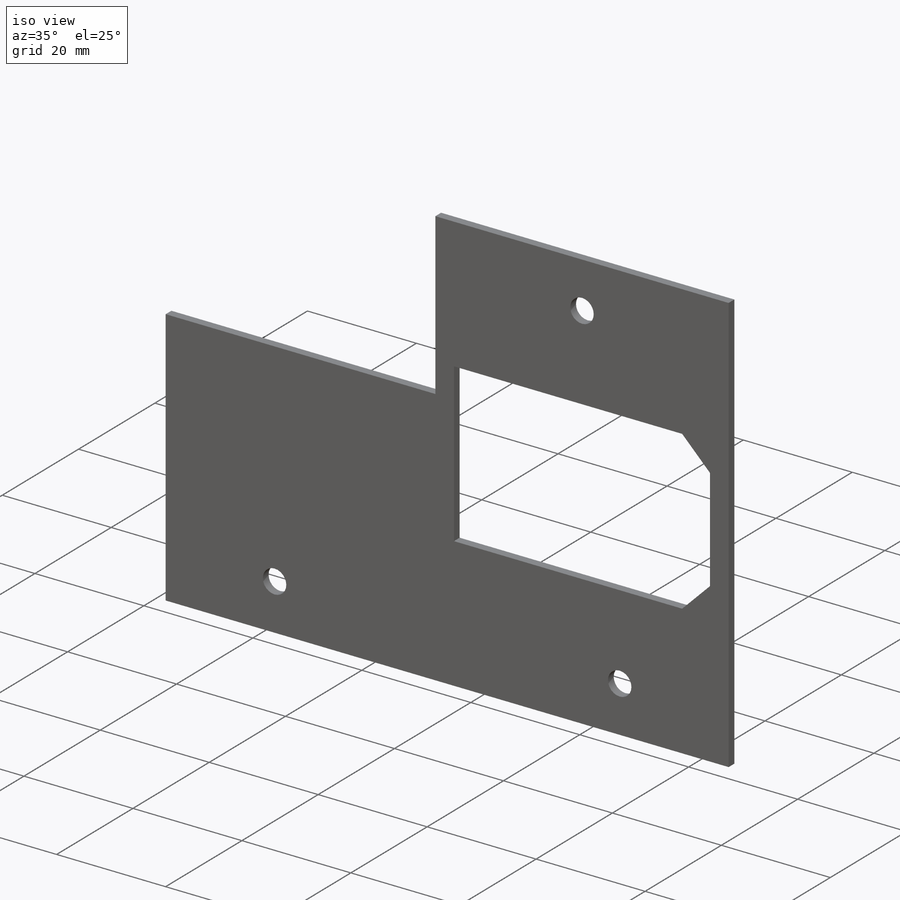
[diagram: iso view]
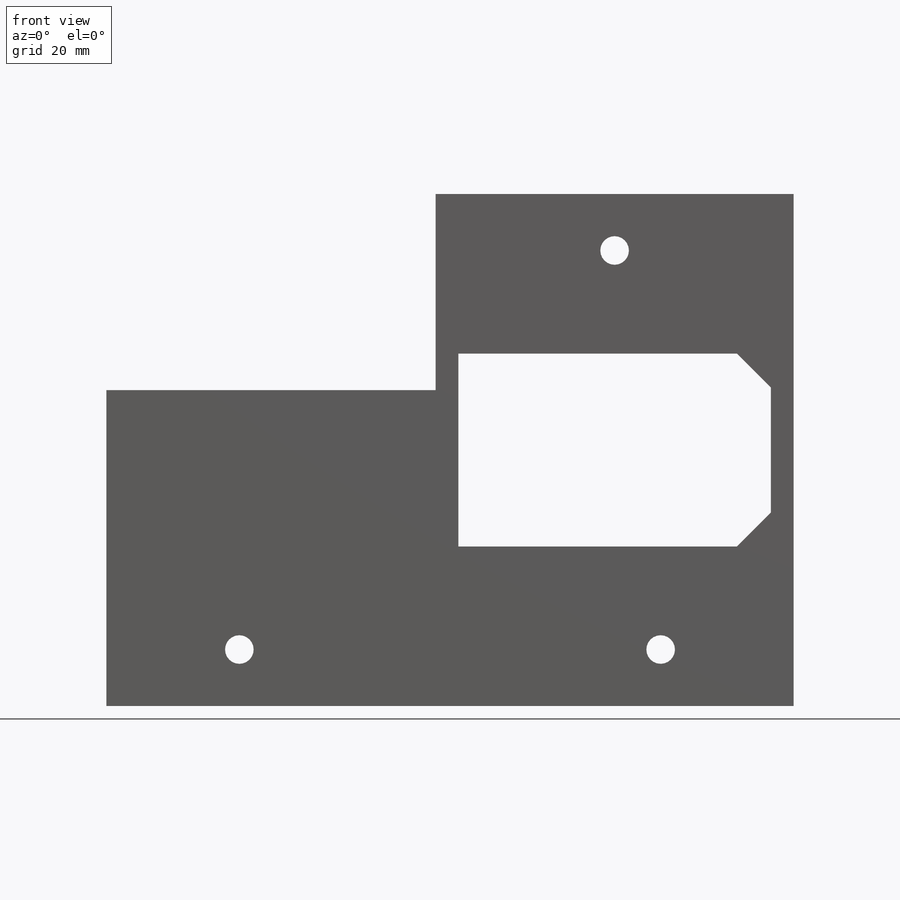
[diagram: front view]
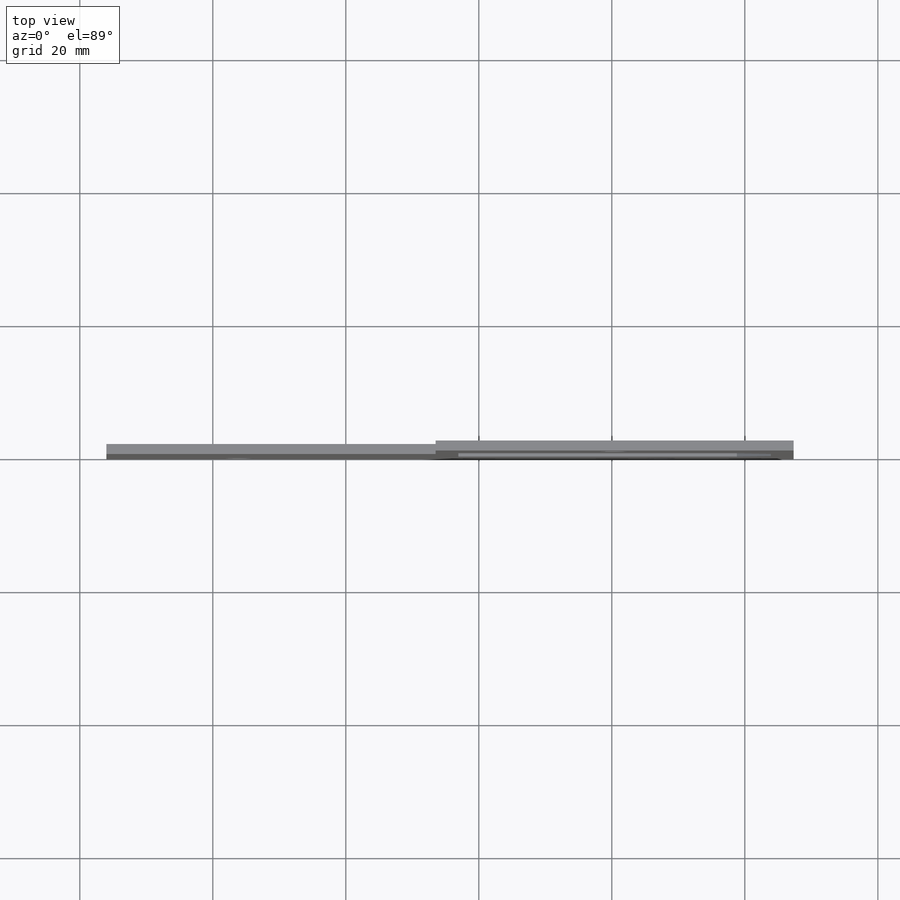
[diagram: top view]
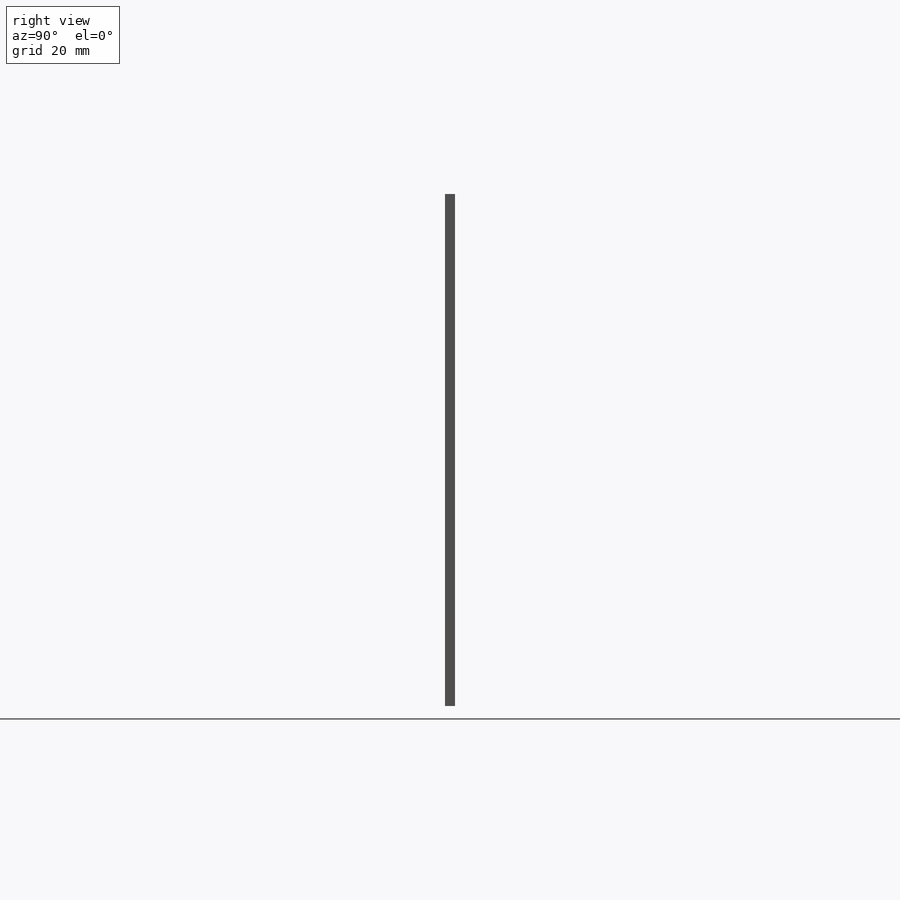
[diagram: right view]
SOLIDWORKS PART (.sldprt)
format: sldprt  version: not decoded by parser v0  size: 203,264 bytes
history: native  units: mm
features: sketch x4, plane x3, material x1, extrude x1, hole x1, cut_extrude x1 (+9 scaffold rows collapsed)
feature tree (20):
  scaffold x9  (default folders/planes/origin — collapsed)
  material  "Matériau <non spécifié>"
  plane  "Plan de face"
  plane  "Plan de dessus"
  plane  "Plan de droite"
  sketch  "Esquisse1"  dims[c1.D1=83.0mm c1.D2=~211.999999mm c2.D1=1.0mm c2.D2=3.0mm c2.D3=0.5mm c2.D4=47.0mm]
  extrude  "Boss.-Extru.1"  Depth=1.5mm
  hole  "Dégagement M41"  Diameter=4.3mm Depth=24mm
  sketch  "Esquisse4"  dims[D1=8.5mm D2=8.5mm]
  sketch  "Esquisse3"  dims[hole-wizard template sketch: 46 standard entries collapsed; hole parameters kept: c15.Diamètre du perçage=4.3mm c15.Profondeur du perçage=24.0mm c15.D3=~14.816244mm c15.Angle de pointe=180.0deg]
  sketch  "Esquisse5"  dims[c1.D1=~29.470067mm c1.D2=~50.990069mm c2.D1=27.0mm c2.D2=47.0mm c2.D3=~25.095935mm c3.D3=~3.416751mm]
  cut_extrude  "Enlèv. mat.-Extru.1"  [1 undecoded]
decode coverage: 6 of 7 modeling features carry decoded parameters
note: ~ marks probable driven/reference dimensions
note: 1 parameter value undecoded
note: suppression state not decoded; provenance and decode notes live in map.json
